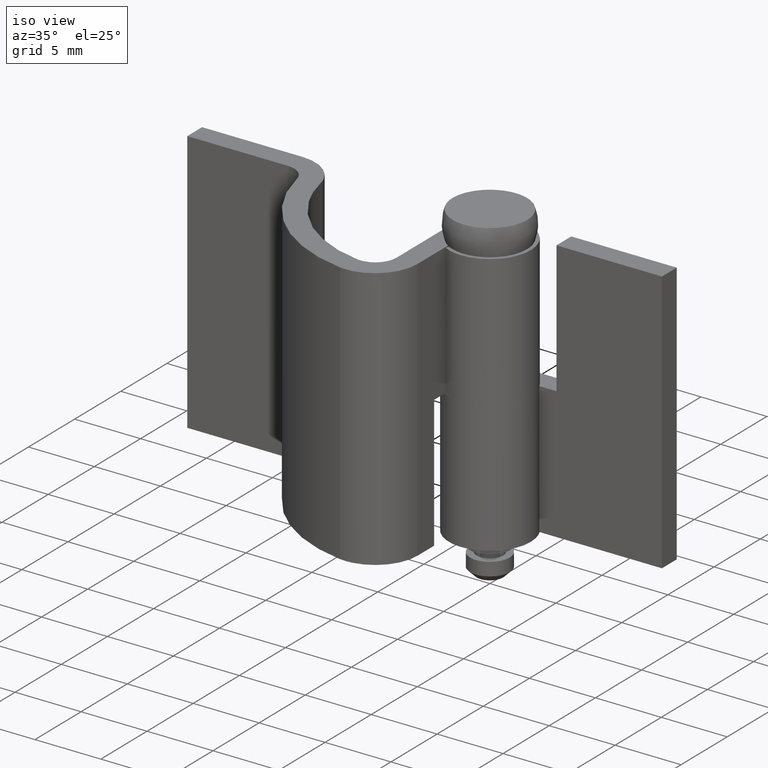
[diagram: clean part render]
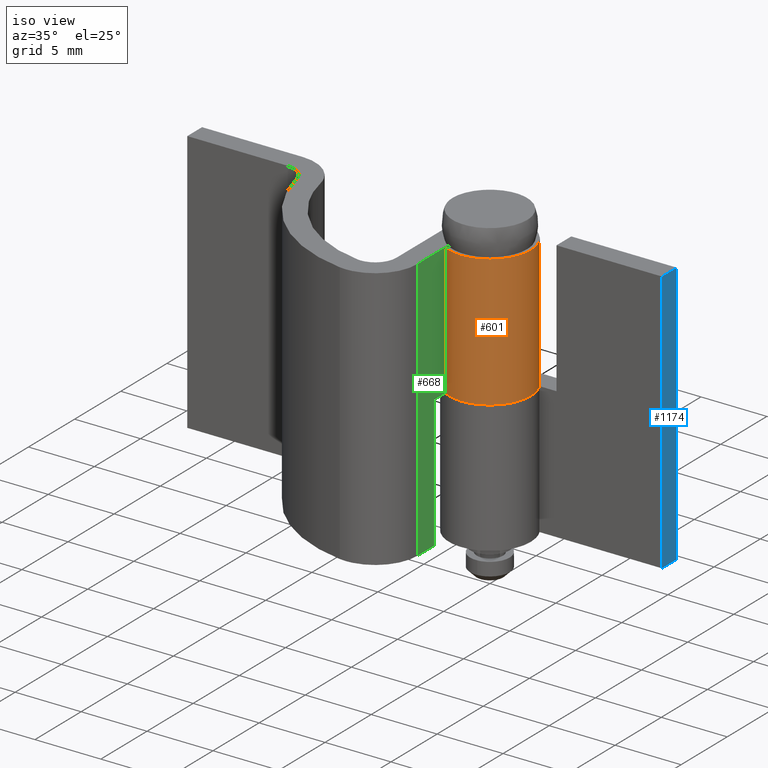
[diagram: same view with three faces highlighted in distinct colors, each labeled with its STEP entity id]
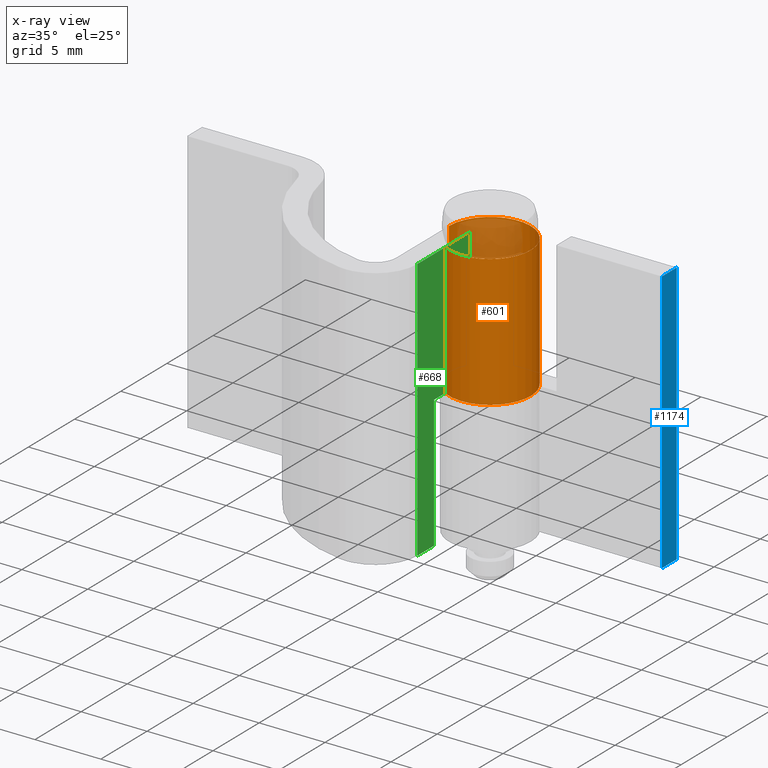
[diagram: x-ray of the same camera — body ghosted, the three highlighted faces saturated]
A machine part, iso view with three faces highlighted in distinct colors.
The next image is the same camera in x-ray (body ghosted, the three faces saturated) — at least one of them is partly hidden behind the body in this view.
Their STEP definitions:

[orange] entity #601 — the highlighted face is a freeform B-spline surface patch.
#114=CARTESIAN_POINT('',(-3.099999000000040,0.0,13.0));
#115=VERTEX_POINT('',#114);
#121=CARTESIAN_POINT('',(-1.449993330971420,-2.739984149614675,13.0));
#122=VERTEX_POINT('',#121);
#123=CARTESIAN_POINT('',(-1.449993330971420,-2.739984149614675,13.0));
#124=CARTESIAN_POINT('',(0.632479674484161,-3.842024090343253,12.999999999999998));
#125=CARTESIAN_POINT('',(2.251794495652523,-2.130590375776218,13.0));
#126=CARTESIAN_POINT('',(3.871109316820887,-0.419156661209182,12.999999999999998));
#127=CARTESIAN_POINT('',(2.655651678592223,1.599221048508166,13.0));
#128=CARTESIAN_POINT('',(1.440194040363559,3.617598758225515,12.999999999999998));
#129=CARTESIAN_POINT('',(-0.829902479818241,2.986847112590931,13.0));
#130=CARTESIAN_POINT('',(-3.099999000000040,2.356095466956348,12.999999999999998));
#131=CARTESIAN_POINT('',(-3.099999000000040,0.0,13.0));
#139=(BOUNDED_CURVE()B_SPLINE_CURVE(2,(#123,#124,#125,#126,#127,#128,#129,#130,#131),.UNSPECIFIED.,.F.,.U.)B_SPLINE_CURVE_WITH_KNOTS((3,2,2,2,3),(0.0,0.250000000000000,0.500000000000000,0.750000000000000,1.0),.UNSPECIFIED.)CURVE()GEOMETRIC_REPRESENTATION_ITEM()RATIONAL_B_SPLINE_CURVE((1.0,0.796150288487973,1.0,0.796150288487973,1.0,0.796150288487973,1.0,0.796150288487973,1.0))REPRESENTATION_ITEM(''));
#140=EDGE_CURVE('',#122,#115,#139,.T.);
#253=CARTESIAN_POINT('',(-1.449993330971420,-2.739984149614675,23.0));
#254=VERTEX_POINT('',#253);
#260=CARTESIAN_POINT('',(-3.099999000000040,0.0,23.0));
#261=VERTEX_POINT('',#260);
#262=CARTESIAN_POINT('',(-3.099999000000040,0.0,23.0));
#263=CARTESIAN_POINT('',(-3.099999000000041,2.356095466956348,23.0));
#264=CARTESIAN_POINT('',(-0.829902479818239,2.986847112590931,23.0));
#265=CARTESIAN_POINT('',(1.440194040363559,3.617598758225513,23.0));
#266=CARTESIAN_POINT('',(2.655651678592223,1.599221048508166,23.0));
#267=CARTESIAN_POINT('',(3.871109316820885,-0.419156661209181,23.0));
#268=CARTESIAN_POINT('',(2.251794495652524,-2.130590375776218,23.0));
#269=CARTESIAN_POINT('',(0.632479674484161,-3.842024090343254,23.0));
#270=CARTESIAN_POINT('',(-1.449993330971421,-2.739984149614674,23.0));
#278=(BOUNDED_CURVE()B_SPLINE_CURVE(2,(#262,#263,#264,#265,#266,#267,#268,#269,#270),.UNSPECIFIED.,.F.,.U.)B_SPLINE_CURVE_WITH_KNOTS((3,2,2,2,3),(0.0,0.250000000000000,0.500000000000000,0.750000000000000,1.0),.UNSPECIFIED.)CURVE()GEOMETRIC_REPRESENTATION_ITEM()RATIONAL_B_SPLINE_CURVE((1.0,0.796150288487973,1.0,0.796150288487973,1.0,0.796150288487973,1.0,0.796150288487973,1.0))REPRESENTATION_ITEM(''));
#279=EDGE_CURVE('',#261,#254,#278,.T.);
#560=CARTESIAN_POINT('',(-3.099999000000040,0.0,13.0));
#561=CARTESIAN_POINT('',(-3.099999000000040,0.0,23.0));
#562=QUASI_UNIFORM_CURVE('',1,(#560,#561),.UNSPECIFIED.,.F.,.U.);
#563=EDGE_CURVE('',#115,#261,#562,.T.);
#569=CARTESIAN_POINT('',(-3.098771689565405,-0.087222794894485,12.750000000000000));
#570=CARTESIAN_POINT('',(-3.098771689565405,-0.087222794894485,23.256250000000001));
#571=CARTESIAN_POINT('',(-3.205210720726385,3.694245763014205,12.749999999999998));
#572=CARTESIAN_POINT('',(-3.205210720726385,3.694245763014205,23.256250000000005));
#573=CARTESIAN_POINT('',(0.523438112514448,3.055487905780115,12.750000000000000));
#574=CARTESIAN_POINT('',(0.523438112514448,3.055487905780115,23.256250000000001));
#575=CARTESIAN_POINT('',(4.252086945755283,2.416730048546025,12.749999999999998));
#576=CARTESIAN_POINT('',(4.252086945755283,2.416730048546025,23.256250000000005));
#577=CARTESIAN_POINT('',(2.893043123222198,-1.113685452530467,12.750000000000000));
#578=CARTESIAN_POINT('',(2.893043123222198,-1.113685452530467,23.256250000000001));
#579=CARTESIAN_POINT('',(1.533999300689114,-4.644100953606958,12.749999999999998));
#580=CARTESIAN_POINT('',(1.533999300689114,-4.644100953606958,23.256250000000005));
#581=CARTESIAN_POINT('',(-1.660500164130241,-2.617772527345469,12.750000000000000));
#582=CARTESIAN_POINT('',(-1.660500164130241,-2.617772527345469,23.256250000000001));
#590=(BOUNDED_SURFACE()B_SPLINE_SURFACE(1,2,((#569,#571,#573,#575,#577,#579,#581),(#570,#572,#574,#576,#578,#580,#582)),.UNSPECIFIED.,.F.,.F.,.U.)B_SPLINE_SURFACE_WITH_KNOTS((2,2),(3,2,2,3),(0.0,10.506250000000000),(0.0,5.870279635649950,11.740559271299899,17.610838906949851),.UNSPECIFIED.)GEOMETRIC_REPRESENTATION_ITEM()RATIONAL_B_SPLINE_SURFACE(((1.0,0.633830967398710,1.0,0.633830967398710,1.0,0.633830967398710,1.0),(1.0,0.633830967398710,1.0,0.633830967398710,1.0,0.633830967398710,1.0)))REPRESENTATION_ITEM('')SURFACE());
#591=ORIENTED_EDGE('',*,*,#140,.T.);
#592=ORIENTED_EDGE('',*,*,#563,.T.);
#593=ORIENTED_EDGE('',*,*,#279,.T.);
#594=CARTESIAN_POINT('',(-1.449993330971420,-2.739984149614675,13.0));
#595=CARTESIAN_POINT('',(-1.449993330971420,-2.739984149614675,23.0));
#596=QUASI_UNIFORM_CURVE('',1,(#594,#595),.UNSPECIFIED.,.F.,.U.);
#597=EDGE_CURVE('',#122,#254,#596,.T.);
#598=ORIENTED_EDGE('',*,*,#597,.F.);
#599=EDGE_LOOP('',(#591,#592,#593,#598));
#600=FACE_OUTER_BOUND('',#599,.T.);
#601=ADVANCED_FACE('',(#600),#590,.T.);

[blue] entity #1174 — the highlighted face is a freeform B-spline surface patch.
#940=CARTESIAN_POINT('',(12.0,1.500000000000000,3.0));
#941=VERTEX_POINT('',#940);
#942=CARTESIAN_POINT('',(12.0,3.099998000000000,3.0));
#943=VERTEX_POINT('',#942);
#944=CARTESIAN_POINT('',(12.0,1.500000000000000,3.0));
#945=CARTESIAN_POINT('',(12.0,3.099998000000000,3.0));
#946=QUASI_UNIFORM_CURVE('',1,(#944,#945),.UNSPECIFIED.,.F.,.U.);
#947=EDGE_CURVE('',#941,#943,#946,.T.);
#1018=CARTESIAN_POINT('',(12.0,1.500000000000000,23.0));
#1019=VERTEX_POINT('',#1018);
#1025=CARTESIAN_POINT('',(12.0,3.099998000000000,23.0));
#1026=VERTEX_POINT('',#1025);
#1027=CARTESIAN_POINT('',(12.0,1.500000000000000,23.0));
#1028=CARTESIAN_POINT('',(12.0,3.099998000000000,23.0));
#1029=QUASI_UNIFORM_CURVE('',1,(#1027,#1028),.UNSPECIFIED.,.F.,.U.);
#1030=EDGE_CURVE('',#1019,#1026,#1029,.T.);
#1053=CARTESIAN_POINT('',(12.0,1.500000000000000,23.0));
#1054=CARTESIAN_POINT('',(12.0,1.500000000000000,3.0));
#1055=QUASI_UNIFORM_CURVE('',1,(#1053,#1054),.UNSPECIFIED.,.F.,.U.);
#1056=EDGE_CURVE('',#1019,#941,#1055,.T.);
#1153=CARTESIAN_POINT('',(12.0,3.099998000000000,23.0));
#1154=CARTESIAN_POINT('',(12.0,3.099998000000000,3.0));
#1155=QUASI_UNIFORM_CURVE('',1,(#1153,#1154),.UNSPECIFIED.,.F.,.U.);
#1156=EDGE_CURVE('',#1026,#943,#1155,.T.);
#1163=CARTESIAN_POINT('',(12.0,3.179917896998894,2.001000038763880));
#1164=CARTESIAN_POINT('',(12.0,3.179917896998894,23.999000497677919));
#1165=CARTESIAN_POINT('',(12.0,1.420080060085816,2.001000038763880));
#1166=CARTESIAN_POINT('',(12.0,1.420080060085816,23.999000497677919));
#1167=B_SPLINE_SURFACE_WITH_KNOTS('',1,1,((#1163,#1165),(#1164,#1166)),.UNSPECIFIED.,.F.,.F.,.U.,(2,2),(2,2),(0.0,21.998000458914039),(0.041708334948495,0.958291687403247),.UNSPECIFIED.);
#1168=ORIENTED_EDGE('',*,*,#947,.T.);
#1169=ORIENTED_EDGE('',*,*,#1156,.F.);
#1170=ORIENTED_EDGE('',*,*,#1030,.F.);
#1171=ORIENTED_EDGE('',*,*,#1056,.T.);
#1172=EDGE_LOOP('',(#1168,#1169,#1170,#1171));
#1173=FACE_OUTER_BOUND('',#1172,.T.);
#1174=ADVANCED_FACE('',(#1173),#1167,.T.);

[green] entity #668 — the highlighted face is a freeform B-spline surface patch.
#49=CARTESIAN_POINT('',(-1.500000000000055,-3.899994000000000,13.0));
#50=VERTEX_POINT('',#49);
#58=CARTESIAN_POINT('',(-1.500000000000055,-3.899994000000000,3.0));
#59=VERTEX_POINT('',#58);
#60=CARTESIAN_POINT('',(-1.500000000000055,-3.899994000000000,13.0));
#61=CARTESIAN_POINT('',(-1.500000000000055,-3.899994000000000,3.0));
#62=QUASI_UNIFORM_CURVE('',1,(#60,#61),.UNSPECIFIED.,.F.,.U.);
#63=EDGE_CURVE('',#50,#59,#62,.T.);
#87=CARTESIAN_POINT('',(-1.500000000000030,0.0,13.0));
#88=VERTEX_POINT('',#87);
#108=CARTESIAN_POINT('',(-1.500000000000030,0.0,13.0));
#109=CARTESIAN_POINT('',(-1.500000000000055,-3.899994000000000,13.0));
#110=QUASI_UNIFORM_CURVE('',1,(#108,#109),.UNSPECIFIED.,.F.,.U.);
#111=EDGE_CURVE('',#88,#50,#110,.T.);
#208=CARTESIAN_POINT('',(-1.500000000000030,-5.704408779425740,23.0));
#209=VERTEX_POINT('',#208);
#225=CARTESIAN_POINT('',(-1.500000000000030,0.0,23.0));
#226=VERTEX_POINT('',#225);
#227=CARTESIAN_POINT('',(-1.500000000000030,-5.704408779425740,23.0));
#228=CARTESIAN_POINT('',(-1.500000000000030,0.0,23.0));
#229=QUASI_UNIFORM_CURVE('',1,(#227,#228),.UNSPECIFIED.,.F.,.U.);
#230=EDGE_CURVE('',#209,#226,#229,.T.);
#341=CARTESIAN_POINT('',(-1.500000000000030,-5.704408779425740,3.0));
#342=VERTEX_POINT('',#341);
#343=CARTESIAN_POINT('',(-1.500000000000030,-5.704408779425740,3.0));
#344=CARTESIAN_POINT('',(-1.500000000000055,-3.899994000000000,3.0));
#345=QUASI_UNIFORM_CURVE('',1,(#343,#344),.UNSPECIFIED.,.F.,.U.);
#346=EDGE_CURVE('',#342,#59,#345,.T.);
#642=CARTESIAN_POINT('',(-1.500000000000030,0.0,13.0));
#643=CARTESIAN_POINT('',(-1.500000000000030,0.0,23.0));
#644=QUASI_UNIFORM_CURVE('',1,(#642,#643),.UNSPECIFIED.,.F.,.U.);
#645=EDGE_CURVE('',#88,#226,#644,.T.);
#651=CARTESIAN_POINT('',(-1.500000000000030,-5.989343879803988,23.998999961236120));
#652=CARTESIAN_POINT('',(-1.500000000000030,0.284935355385193,23.998999961236120));
#653=CARTESIAN_POINT('',(-1.500000000000030,-5.989343879803988,2.000999502322078));
#654=CARTESIAN_POINT('',(-1.500000000000030,0.284935355385193,2.000999502322078));
#655=B_SPLINE_SURFACE_WITH_KNOTS('',1,1,((#651,#653),(#652,#654)),.UNSPECIFIED.,.F.,.F.,.U.,(2,2),(2,2),(0.0,6.274279235189180),(0.0,21.998000458914049),.UNSPECIFIED.);
#656=ORIENTED_EDGE('',*,*,#645,.T.);
#657=ORIENTED_EDGE('',*,*,#230,.F.);
#658=CARTESIAN_POINT('',(-1.500000000000030,-5.704408779425740,3.0));
#659=CARTESIAN_POINT('',(-1.500000000000030,-5.704408779425740,23.0));
#660=QUASI_UNIFORM_CURVE('',1,(#658,#659),.UNSPECIFIED.,.F.,.U.);
#661=EDGE_CURVE('',#342,#209,#660,.T.);
#662=ORIENTED_EDGE('',*,*,#661,.F.);
#663=ORIENTED_EDGE('',*,*,#346,.T.);
#664=ORIENTED_EDGE('',*,*,#63,.F.);
#665=ORIENTED_EDGE('',*,*,#111,.F.);
#666=EDGE_LOOP('',(#656,#657,#662,#663,#664,#665));
#667=FACE_OUTER_BOUND('',#666,.T.);
#668=ADVANCED_FACE('',(#667),#655,.F.);